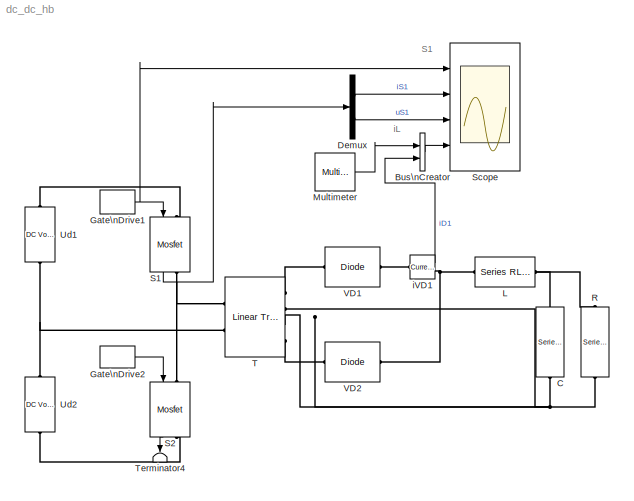
MODEL dc_dc_hb
KIND model
BLOCK [BusCreator] Bus\nCreator
  DialogController = Simulink.DDGSource_Bus
  DisplayOption = bar
  Inputs = 2
  Ports = [2, 1]
BLOCK [Reference] C  REF=powerlib/Elements/Series RLC Branch
  Capacitance = 2e-5
  Inductance = 0
  LConnTagsString = __new0
  LeftPortType = p1
  Measurements = None
  PhysicalDomain = powersysdomain
  Ports = [0, 0, 0, 0, 0, 1, 1]
  RConnTagsString = __new0
  Resistance = 0
  RightPortType = p1
  SourceBlock = powerlib/Elements/Series RLC Branch
  SourceType = Series RLC Branch
  SubClassName = unknown
BLOCK [Demux] Demux
  DisplayOption = bar
  Outputs = 2
  Ports = [1, 2]
BLOCK [DiscretePulseGenerator] Gate\nDrive1
  Period = 0.00005
  Ports = [0, 1]
  PulseType = Time based
  PulseWidth = 30
BLOCK [DiscretePulseGenerator] Gate\nDrive2
  Period = 0.00005
  PhaseDelay = 0.000025
  Ports = [0, 1]
  PulseType = Time based
  PulseWidth = 30
BLOCK [Reference] L  REF=powerlib/Elements/Series RLC Branch
  Capacitance = inf
  Inductance = 1e-4
  LConnTagsString = __new0
  LeftPortType = p1
  Measurements = Branch voltage and current
  PhysicalDomain = powersysdomain
  Ports = [0, 0, 0, 0, 0, 1, 1]
  RConnTagsString = __new0
  Resistance = 0
  RightPortType = p1
  SourceBlock = powerlib/Elements/Series RLC Branch
  SourceType = Series RLC Branch
  SubClassName = unknown
BLOCK [Reference] Multimeter  REF=powerlib/Measurements/Multimeter
  AxesSetting = [0,0.1,-100,100]
  Display = 0
  Gain = 1
  L = 6
  OutputType = Complex
  PSBOutputType = 1
  PSBequivalent = 0
  PhasorSimulation = off
  Ports = [0, 1]
  SavedBlockNames = -11
  ShowPortLabels = on
  SourceBlock = powerlib/Measurements/Multimeter
  SourceType = MultimeterPSB
  sel = 6
  yselected = {'Ib: L'};
BLOCK [Reference] R  REF=powerlib/Elements/Series RLC Branch
  Capacitance = inf
  Inductance = 0
  LConnTagsString = __new0
  LeftPortType = p1
  Measurements = Branch voltage
  PhysicalDomain = powersysdomain
  Ports = [0, 0, 0, 0, 0, 1, 1]
  RConnTagsString = __new0
  Resistance = 2
  RightPortType = p1
  SourceBlock = powerlib/Elements/Series RLC Branch
  SourceType = Series RLC Branch
  SubClassName = unknown
BLOCK [Reference] S1  REF=powerlib/Power\nElectronics/Mosfet
  Cs = 1e-8
  IC = 0
  Lon = 1e-8
  Measurements = on
  Ports = [1, 1, 0, 0, 0, 1, 1]
  Rd = .01
  Ron = 0.01
  Rs = 30
  ShowPortLabels = on
  SourceBlock = powerlib/Power\nElectronics/Mosfet
  SourceType = Mosfet
BLOCK [Reference] S2  REF=powerlib/Power\nElectronics/Mosfet
  Cs = 1e-8
  IC = 0
  Lon = 1e-8
  Measurements = on
  Ports = [1, 1, 0, 0, 0, 1, 1]
  Rd = .01
  Ron = 0.01
  Rs = 30
  ShowPortLabels = on
  SourceBlock = powerlib/Power\nElectronics/Mosfet
  SourceType = Mosfet
BLOCK [Scope] Scope
  DataFormat = StructureWithTime
  LimitDataPoints = off
  NumInputPorts = 4
  Ports = [4]
  SampleTime = 1e-7
  TimeRange = 0.0005
  YMax = 2~25~250~20
  YMin = 0~-5~0~-5
  ZoomMode = xonly
BLOCK [Reference] T  REF=powerlib/Elements/Linear Transformer
  LConnTagsString = a|b
  LeftPortType = p1
  Measurements = Winding voltages
  NominalPower = [1000 20000 ]
  PhysicalDomain = powersysdomain
  Ports = [0, 0, 0, 0, 0, 2, 4]
  RConnTagsString = A|B|C|D
  RightPortType = p1
  RmLm = [ 500 20 ]
  SourceBlock = powerlib/Elements/Linear Transformer
  SourceType = Linear Transformer
  SubClassName = unknown
  ThreeWindings = on
  winding1 = [ 100  0.002  0.002 ]
  winding2 = [ 50  0.002  0.002 ]
  winding3 = [ 50 0.002 0.002 ]
BLOCK [Terminator] Terminator4
BLOCK [Reference] Ud1  REF=powerlib/Electrical\nSources/DC Voltage Source
  Amplitude = 100
  Measurements = None
  Ports = [0, 0, 0, 0, 0, 1, 1]
  ShowPortLabels = on
  SourceBlock = powerlib/Electrical\nSources/DC Voltage Source
  SourceType = DC Voltage Source
BLOCK [Reference] Ud2  REF=powerlib/Electrical\nSources/DC Voltage Source
  Amplitude = 100
  Measurements = None
  Ports = [0, 0, 0, 0, 0, 1, 1]
  ShowPortLabels = on
  SourceBlock = powerlib/Electrical\nSources/DC Voltage Source
  SourceType = DC Voltage Source
BLOCK [Reference] VD1  REF=powerlib/Power\nElectronics/Diode
  Cs = 1e-9
  IC = 0
  Lon = 0
  Measurements = off
  Ports = [0, 0, 0, 0, 0, 1, 1]
  Ron = 0.001
  Rs = 100
  ShowPortLabels = on
  SourceBlock = powerlib/Power\nElectronics/Diode
  SourceType = Diode
  Vf = 0.8
BLOCK [Reference] VD2  REF=powerlib/Power\nElectronics/Diode
  Cs = 1e-9
  IC = 0
  Lon = 0
  Measurements = off
  Ports = [0, 0, 0, 0, 0, 1, 1]
  Ron = 0.001
  Rs = 100
  ShowPortLabels = on
  SourceBlock = powerlib/Power\nElectronics/Diode
  SourceType = Diode
  Vf = 0.8
BLOCK [Reference] iVD1  REF=powerlib/Measurements/Current Measurement
  OutputType = Complex
  PSBequivalent = 0
  PhasorSimulation = off
  Ports = [0, 1, 0, 0, 0, 1, 1]
  ShowPortLabels = on
  SourceBlock = powerlib/Measurements/Current Measurement
  SourceType = Current Measurement
ANNOTATION (root): S1
ANNOTATION (root): iL
LINE Bus\nCreator:1 -> Scope:4
LINE Demux:1 -> Scope:2
LINE Demux:2 -> Scope:3
NET Gate\nDrive1:1 -> S1:1, Scope:1
LINE Gate\nDrive2:1 -> S2:1
LINE Multimeter:1 -> Bus\nCreator:1
LINE S1:1 -> Demux:1
LINE S2:1 -> Terminator4:1
LINE iVD1:1 -> Bus\nCreator:2
PNET net1: C:LConn1 -- R:RConn1 -- T:RConn2 -- T:RConn3
PNET net2: C:RConn1 -- L:RConn1 -- R:LConn1
PNET net3: L:LConn1 -- VD2:RConn1 -- iVD1:RConn1
PLINE S1:LConn1 -- Ud1:RConn1
PNET net4: S1:RConn1 -- S2:LConn1 -- T:LConn1
PLINE S2:RConn1 -- Ud2:LConn1
PNET net5: T:LConn2 -- Ud1:LConn1 -- Ud2:RConn1
PLINE T:RConn1 -- VD1:LConn1
PLINE T:RConn4 -- VD2:LConn1
PLINE VD1:RConn1 -- iVD1:LConn1
note: NET lines group one-source signal fan-out (src -> all destinations, sorted); 1:1 wires keep LINE; PNET lines group multi-terminal physical nets as a canonical sorted terminal list (undirected conserving connections); 2-terminal nets keep the pairwise PLINE form
